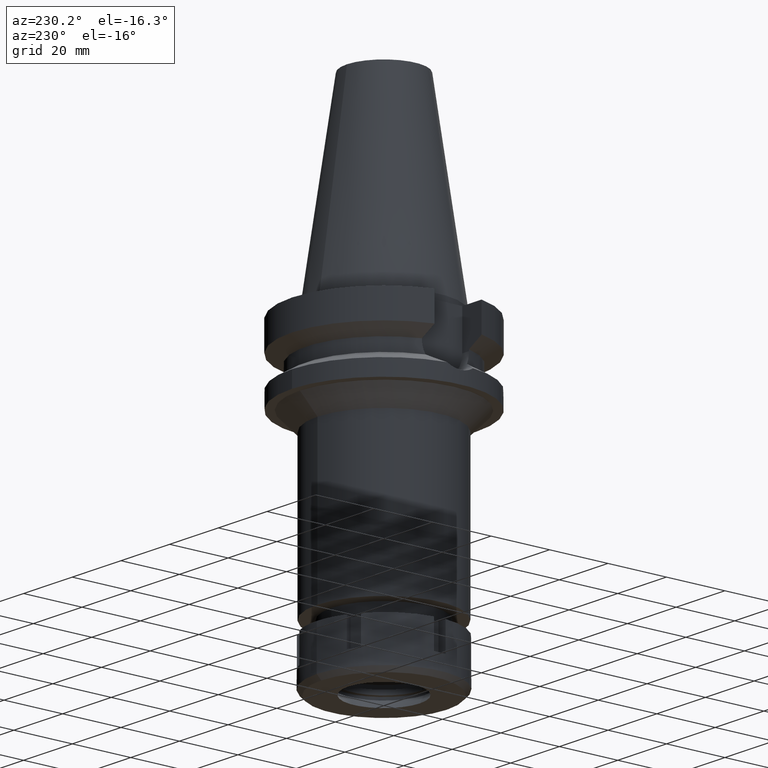
[diagram: clean part render]
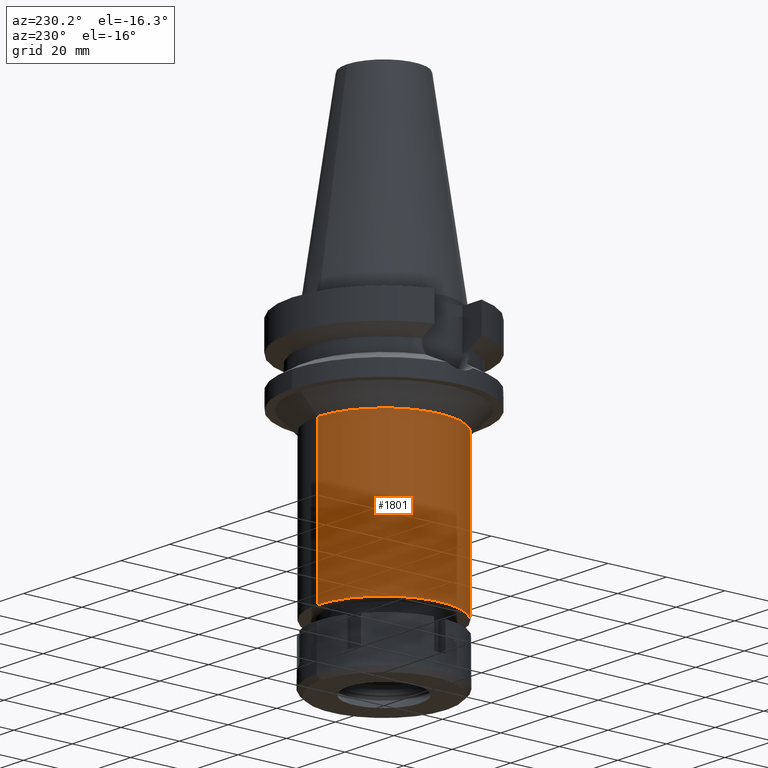
[diagram: same view with one face highlighted and labeled with its STEP entity id]
A machine part, auxiliary view. The second image highlights one B-rep face of the part: STEP entity #1801.
In plain terms, the highlighted cylindrical surface (partial cylindrical patch) has radius 22.75 mm, axis along (0, 0, -1).
Its self-contained STEP definition (entity closure, byte-faithful):
#197 = DIRECTION ( 'NONE',  ( 0.0000000000000000000, 0.0000000000000000000, 1.000000000000000000 ) ) ;
#404 = ORIENTED_EDGE ( 'NONE', *, *, #1407, .T. ) ;
#502 = DIRECTION ( 'NONE',  ( 0.0000000000000000000, 1.000000000000000000, 0.0000000000000000000 ) ) ;
#533 = CARTESIAN_POINT ( 'NONE',  ( 0.0000000000000000000, 22.75000000000000000, -33.00000000000000000 ) ) ;
#709 = VECTOR ( 'NONE', #3397, 1000.000000000000000 ) ;
#899 = CIRCLE ( 'NONE', #1996, 22.75000000000000000 ) ;
#927 = DIRECTION ( 'NONE',  ( 0.0000000000000000000, -1.000000000000000000, 0.0000000000000000000 ) ) ;
#1156 = ORIENTED_EDGE ( 'NONE', *, *, #2590, .T. ) ;
#1171 = DIRECTION ( 'NONE',  ( 0.0000000000000000000, 0.0000000000000000000, -1.000000000000000000 ) ) ;
#1183 = AXIS2_PLACEMENT_3D ( 'NONE', #2556, #3102, #927 ) ;
#1253 = CYLINDRICAL_SURFACE ( 'NONE', #2812, 22.75000000000000000 ) ;
#1335 = EDGE_CURVE ( 'NONE', #3615, #3412, #2303, .T. ) ;
#1407 = EDGE_CURVE ( 'NONE', #3615, #2469, #3287, .T. ) ;
#1467 = DIRECTION ( 'NONE',  ( 0.0000000000000000000, -1.000000000000000000, 0.0000000000000000000 ) ) ;
#1530 = EDGE_LOOP ( 'NONE', ( #1156, #2135, #404, #2830 ) ) ;
#1742 = CARTESIAN_POINT ( 'NONE',  ( 0.0000000000000000000, -22.75000000000000000, -33.00000000000000000 ) ) ;
#1792 = CARTESIAN_POINT ( 'NONE',  ( 0.0000000000000000000, 2.125007125879999817E-14, 73.51999999999999602 ) ) ;
#1801 = ADVANCED_FACE ( 'NONE', ( #2297 ), #1253, .T. ) ;
#1872 = CARTESIAN_POINT ( 'NONE',  ( 0.0000000000000000000, 22.75000000000000000, -84.50000000000000000 ) ) ;
#1996 = AXIS2_PLACEMENT_3D ( 'NONE', #3594, #197, #502 ) ;
#2135 = ORIENTED_EDGE ( 'NONE', *, *, #1335, .F. ) ;
#2288 = VECTOR ( 'NONE', #3036, 1000.000000000000000 ) ;
#2297 = FACE_OUTER_BOUND ( 'NONE', #1530, .T. ) ;
#2303 = LINE ( 'NONE', #1742, #709 ) ;
#2439 = CARTESIAN_POINT ( 'NONE',  ( 0.0000000000000000000, 22.75000000000000000, -33.00000000000000000 ) ) ;
#2469 = VERTEX_POINT ( 'NONE', #533 ) ;
#2556 = CARTESIAN_POINT ( 'NONE',  ( 0.0000000000000000000, 0.0000000000000000000, -33.00000000000000000 ) ) ;
#2558 = VERTEX_POINT ( 'NONE', #1872 ) ;
#2590 = EDGE_CURVE ( 'NONE', #2558, #3412, #899, .T. ) ;
#2669 = EDGE_CURVE ( 'NONE', #2469, #2558, #3559, .T. ) ;
#2724 = CARTESIAN_POINT ( 'NONE',  ( 0.0000000000000000000, -22.75000000000000000, -33.00000000000000000 ) ) ;
#2812 = AXIS2_PLACEMENT_3D ( 'NONE', #1792, #1171, #1467 ) ;
#2830 = ORIENTED_EDGE ( 'NONE', *, *, #2669, .T. ) ;
#3036 = DIRECTION ( 'NONE',  ( 0.0000000000000000000, 0.0000000000000000000, -1.000000000000000000 ) ) ;
#3102 = DIRECTION ( 'NONE',  ( 0.0000000000000000000, 0.0000000000000000000, -1.000000000000000000 ) ) ;
#3144 = CARTESIAN_POINT ( 'NONE',  ( 0.0000000000000000000, -22.75000000000000000, -84.50000000000000000 ) ) ;
#3287 = CIRCLE ( 'NONE', #1183, 22.75000000000000000 ) ;
#3397 = DIRECTION ( 'NONE',  ( 0.0000000000000000000, 0.0000000000000000000, -1.000000000000000000 ) ) ;
#3412 = VERTEX_POINT ( 'NONE', #3144 ) ;
#3559 = LINE ( 'NONE', #2439, #2288 ) ;
#3594 = CARTESIAN_POINT ( 'NONE',  ( 0.0000000000000000000, 2.125007125879999817E-14, -84.50000000000000000 ) ) ;
#3615 = VERTEX_POINT ( 'NONE', #2724 ) ;